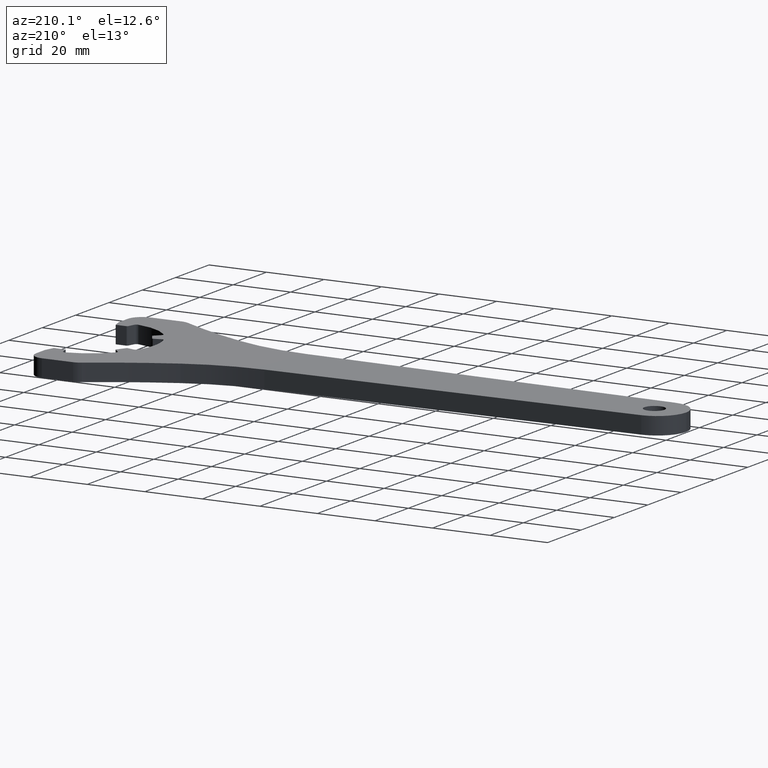
[diagram: clean part render]
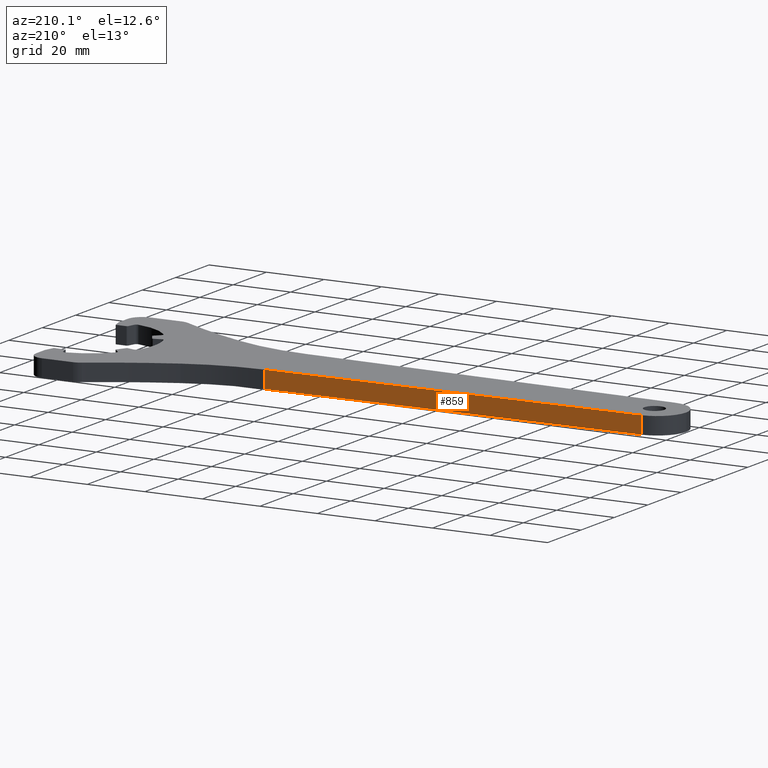
[diagram: same view with one face highlighted and labeled with its STEP entity id]
A machine part, auxiliary view. The second image highlights one B-rep face of the part: STEP entity #859.
In plain terms, the highlighted planar face has unit normal (0.0192, -0.9998, 0).
Its self-contained STEP definition (entity closure, byte-faithful):
#52 = LINE ( 'NONE', #644, #760 ) ;
#146 = LINE ( 'NONE', #239, #465 ) ;
#149 = CARTESIAN_POINT ( 'NONE',  ( -197.1716757429999500, 9.998158079999997800, 0.0000000000000000000 ) ) ;
#239 = CARTESIAN_POINT ( 'NONE',  ( -197.1716757404254800, 9.998158079615709700, 3.000000000000000000 ) ) ;
#272 = CARTESIAN_POINT ( 'NONE',  ( -67.59248863793996500, 12.48555838900116100, -2.168404344971008900E-016 ) ) ;
#277 = DIRECTION ( 'NONE',  ( 0.9998158079562803300, 0.01919245061815623800, 0.0000000000000000000 ) ) ;
#321 = ORIENTED_EDGE ( 'NONE', *, *, #920, .T. ) ;
#414 = EDGE_LOOP ( 'NONE', ( #1733, #1408, #1515, #321 ) ) ;
#465 = VECTOR ( 'NONE', #1178, 1000.000000000000000 ) ;
#512 = AXIS2_PLACEMENT_3D ( 'NONE', #149, #1094, #277 ) ;
#552 = DIRECTION ( 'NONE',  ( 0.0000000000000000000, 0.0000000000000000000, 1.000000000000000000 ) ) ;
#559 = VERTEX_POINT ( 'NONE', #946 ) ;
#644 = CARTESIAN_POINT ( 'NONE',  ( -67.59248873481996600, 12.48555841000001400, 6.000000000000000000 ) ) ;
#676 = CARTESIAN_POINT ( 'NONE',  ( -197.1716757418076600, 9.998158079806030300, 0.0000000000000000000 ) ) ;
#716 = EDGE_CURVE ( 'NONE', #825, #1069, #1504, .T. ) ;
#760 = VECTOR ( 'NONE', #1454, 1000.000000000000000 ) ;
#805 = VECTOR ( 'NONE', #1434, 1000.000000000000100 ) ;
#825 = VERTEX_POINT ( 'NONE', #272 ) ;
#847 = VERTEX_POINT ( 'NONE', #676 ) ;
#859 = ADVANCED_FACE ( 'NONE', ( #1606 ), #1335, .F. ) ;
#920 = EDGE_CURVE ( 'NONE', #825, #847, #1525, .T. ) ;
#946 = CARTESIAN_POINT ( 'NONE',  ( -197.1716757419955300, 9.998158091774351800, 6.000000000000000000 ) ) ;
#963 = CARTESIAN_POINT ( 'NONE',  ( -67.59248863845272100, 12.48555840042059400, 6.000000000000000000 ) ) ;
#1069 = VERTEX_POINT ( 'NONE', #963 ) ;
#1094 = DIRECTION ( 'NONE',  ( 0.01919245061815623800, -0.9998158079562803300, 0.0000000000000000000 ) ) ;
#1144 = VECTOR ( 'NONE', #552, 1000.000000000000000 ) ;
#1178 = DIRECTION ( 'NONE',  ( -0.0000000000000000000, -0.0000000000000000000, 1.000000000000000000 ) ) ;
#1225 = CARTESIAN_POINT ( 'NONE',  ( -67.59248863799999200, 12.48555838900000100, 3.000000000000000000 ) ) ;
#1292 = CARTESIAN_POINT ( 'NONE',  ( -197.1716757429999500, 9.998158079999997800, 0.0000000000000000000 ) ) ;
#1335 = PLANE ( 'NONE',  #512 ) ;
#1408 = ORIENTED_EDGE ( 'NONE', *, *, #1478, .F. ) ;
#1434 = DIRECTION ( 'NONE',  ( -0.9998158079562803300, -0.01919245061815623800, -0.0000000000000000000 ) ) ;
#1437 = EDGE_CURVE ( 'NONE', #847, #559, #146, .T. ) ;
#1454 = DIRECTION ( 'NONE',  ( -0.9998158079564410900, -0.01919245060978539600, 0.0000000000000000000 ) ) ;
#1478 = EDGE_CURVE ( 'NONE', #1069, #559, #52, .T. ) ;
#1504 = LINE ( 'NONE', #1225, #1144 ) ;
#1515 = ORIENTED_EDGE ( 'NONE', *, *, #716, .F. ) ;
#1525 = LINE ( 'NONE', #1292, #805 ) ;
#1606 = FACE_OUTER_BOUND ( 'NONE', #414, .T. ) ;
#1733 = ORIENTED_EDGE ( 'NONE', *, *, #1437, .T. ) ;